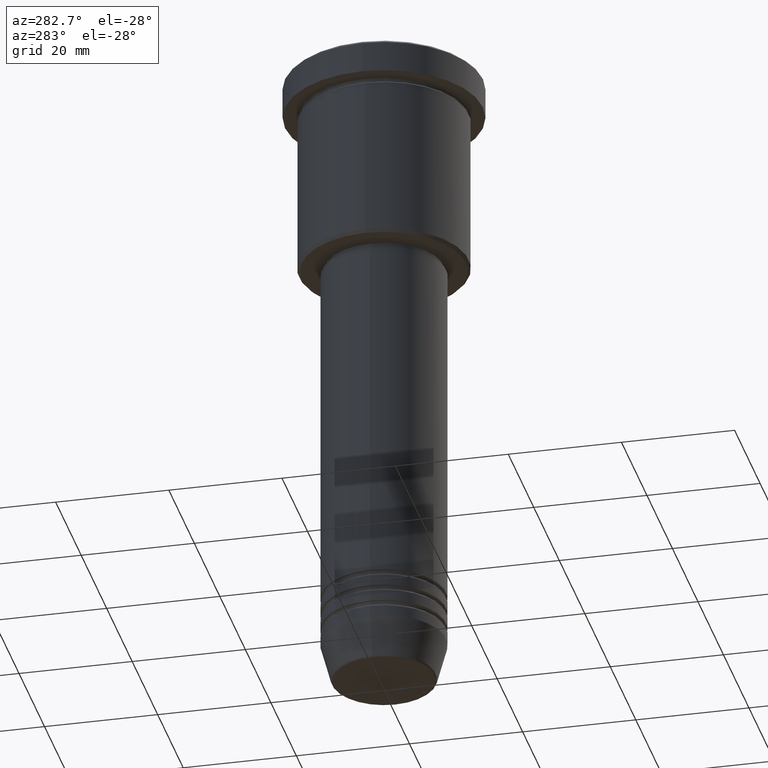
[diagram: clean part render]
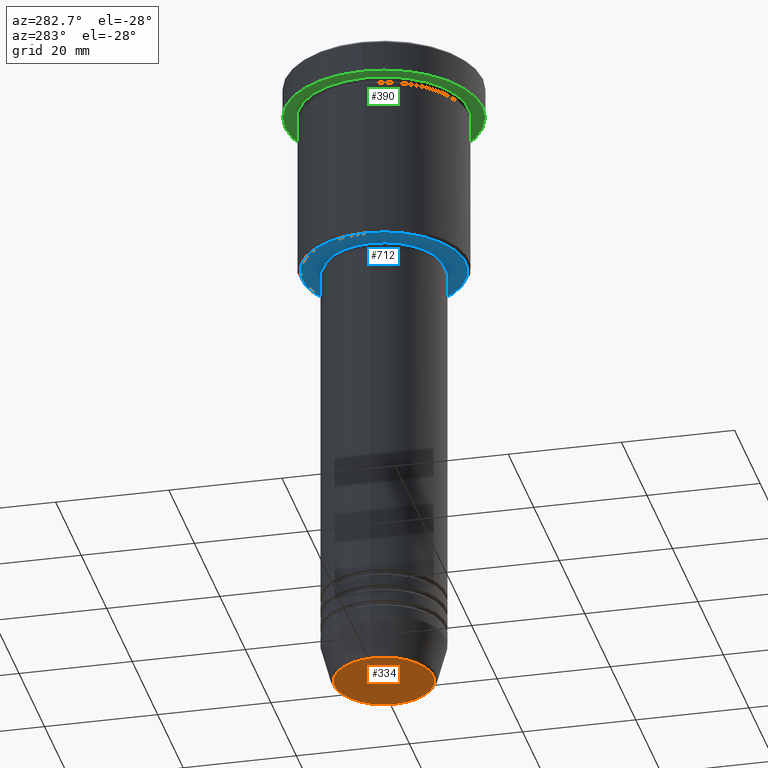
[diagram: same view with three faces highlighted in distinct colors, each labeled with its STEP entity id]
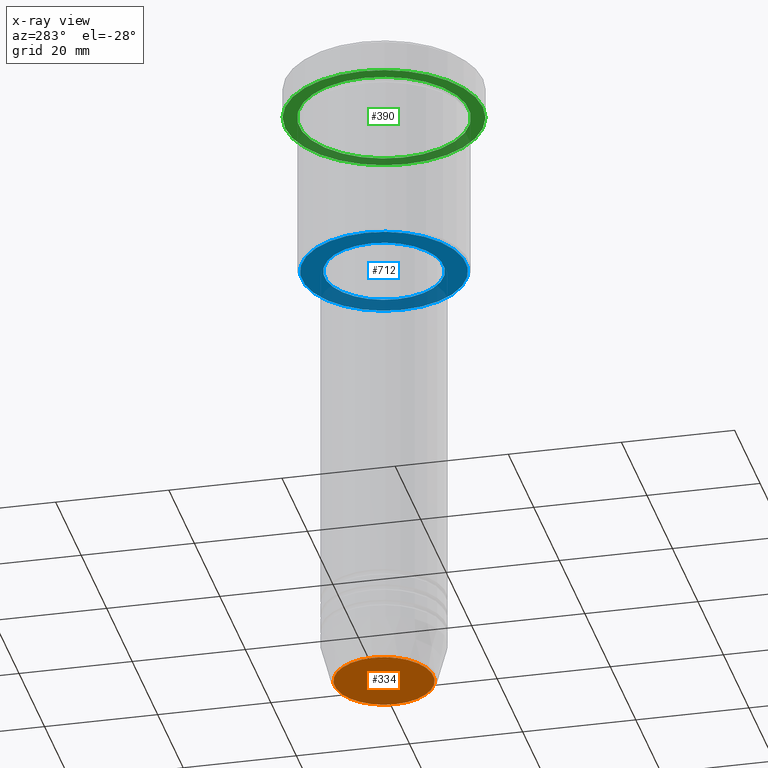
[diagram: x-ray of the same camera — body ghosted, the three highlighted faces saturated]
A machine part, auxiliary view with three faces highlighted in distinct colors.
The next image is the same camera in x-ray (body ghosted, the three faces saturated) — at least one of them is partly hidden behind the body in this view.
Their STEP definitions:

[orange] entity #334 — the highlighted planar face has unit normal (0, -0, 1).
#24 = CIRCLE ( 'NONE', #399, 8.740692158992656502 ) ;
#40 = EDGE_LOOP ( 'NONE', ( #503, #770 ) ) ;
#293 = EDGE_CURVE ( 'NONE', #457, #618, #24, .T. ) ;
#319 = PLANE ( 'NONE',  #1016 ) ;
#322 = CARTESIAN_POINT ( 'NONE',  ( 0.000000000000000000, 0.000000000000000000, -116.0000000000000000 ) ) ;
#331 = CARTESIAN_POINT ( 'NONE',  ( 8.740692158992656502, 0.000000000000000000, -116.0000000000000000 ) ) ;
#334 = ADVANCED_FACE ( 'NONE', ( #678 ), #319, .F. ) ;
#358 = CARTESIAN_POINT ( 'NONE',  ( 0.000000000000000000, 0.000000000000000000, -116.0000000000000000 ) ) ;
#399 = AXIS2_PLACEMENT_3D ( 'NONE', #322, #1046, #852 ) ;
#426 = DIRECTION ( 'NONE',  ( 1.000000000000000000, 0.000000000000000000, 0.000000000000000000 ) ) ;
#457 = VERTEX_POINT ( 'NONE', #843 ) ;
#503 = ORIENTED_EDGE ( 'NONE', *, *, #868, .T. ) ;
#538 = DIRECTION ( 'NONE',  ( 0.000000000000000000, 0.000000000000000000, -1.000000000000000000 ) ) ;
#618 = VERTEX_POINT ( 'NONE', #331 ) ;
#678 = FACE_OUTER_BOUND ( 'NONE', #40, .T. ) ;
#770 = ORIENTED_EDGE ( 'NONE', *, *, #293, .T. ) ;
#787 = AXIS2_PLACEMENT_3D ( 'NONE', #358, #538, #426 ) ;
#843 = CARTESIAN_POINT ( 'NONE',  ( -8.740692158992656502, 1.099999016768739653E-15, -116.0000000000000000 ) ) ;
#852 = DIRECTION ( 'NONE',  ( 1.000000000000000000, 0.000000000000000000, 0.000000000000000000 ) ) ;
#868 = EDGE_CURVE ( 'NONE', #618, #457, #981, .T. ) ;
#896 = CARTESIAN_POINT ( 'NONE',  ( 0.000000000000000000, 0.000000000000000000, -116.0000000000000000 ) ) ;
#912 = DIRECTION ( 'NONE',  ( 1.000000000000000000, 0.000000000000000000, 0.000000000000000000 ) ) ;
#981 = CIRCLE ( 'NONE', #787, 8.740692158992656502 ) ;
#1016 = AXIS2_PLACEMENT_3D ( 'NONE', #896, #1090, #912 ) ;
#1046 = DIRECTION ( 'NONE',  ( 0.000000000000000000, 0.000000000000000000, -1.000000000000000000 ) ) ;
#1090 = DIRECTION ( 'NONE',  ( 0.000000000000000000, -0.000000000000000000, 1.000000000000000000 ) ) ;

[blue] entity #712 — the highlighted planar face has unit normal (0, 0, -1).
#12 = AXIS2_PLACEMENT_3D ( 'NONE', #602, #1050, #134 ) ;
#56 = DIRECTION ( 'NONE',  ( 0.000000000000000000, 0.000000000000000000, -1.000000000000000000 ) ) ;
#58 = FACE_OUTER_BOUND ( 'NONE', #154, .T. ) ;
#69 = AXIS2_PLACEMENT_3D ( 'NONE', #779, #56, #492 ) ;
#94 = CARTESIAN_POINT ( 'NONE',  ( -14.49999999999998401, 1.806354028742345013E-15, -36.00000000000000711 ) ) ;
#102 = EDGE_CURVE ( 'NONE', #350, #603, #383, .T. ) ;
#134 = DIRECTION ( 'NONE',  ( 1.000000000000000000, 0.000000000000000000, 0.000000000000000000 ) ) ;
#141 = CIRCLE ( 'NONE', #12, 10.49999999999999822 ) ;
#151 = EDGE_LOOP ( 'NONE', ( #574, #284 ) ) ;
#154 = EDGE_LOOP ( 'NONE', ( #724, #814 ) ) ;
#228 = CARTESIAN_POINT ( 'NONE',  ( 0.000000000000000000, 0.000000000000000000, -36.00000000000000711 ) ) ;
#230 = CARTESIAN_POINT ( 'NONE',  ( 0.000000000000000000, 15.00000000000000000, -36.00000000000000711 ) ) ;
#284 = ORIENTED_EDGE ( 'NONE', *, *, #287, .T. ) ;
#287 = EDGE_CURVE ( 'NONE', #465, #338, #1049, .T. ) ;
#338 = VERTEX_POINT ( 'NONE', #374 ) ;
#350 = VERTEX_POINT ( 'NONE', #94 ) ;
#374 = CARTESIAN_POINT ( 'NONE',  ( 10.49999999999999822, 0.000000000000000000, -36.00000000000000711 ) ) ;
#383 = CIRCLE ( 'NONE', #1148, 14.49999999999998401 ) ;
#465 = VERTEX_POINT ( 'NONE', #1024 ) ;
#492 = DIRECTION ( 'NONE',  ( -1.000000000000000000, 0.000000000000000000, 0.000000000000000000 ) ) ;
#510 = DIRECTION ( 'NONE',  ( 0.000000000000000000, 0.000000000000000000, -1.000000000000000000 ) ) ;
#574 = ORIENTED_EDGE ( 'NONE', *, *, #719, .T. ) ;
#598 = PLANE ( 'NONE',  #1174 ) ;
#602 = CARTESIAN_POINT ( 'NONE',  ( 0.000000000000000000, 0.000000000000000000, -36.00000000000000711 ) ) ;
#603 = VERTEX_POINT ( 'NONE', #739 ) ;
#688 = FACE_BOUND ( 'NONE', #151, .T. ) ;
#712 = ADVANCED_FACE ( 'NONE', ( #58, #688 ), #598, .T. ) ;
#719 = EDGE_CURVE ( 'NONE', #338, #465, #141, .T. ) ;
#724 = ORIENTED_EDGE ( 'NONE', *, *, #1125, .T. ) ;
#739 = CARTESIAN_POINT ( 'NONE',  ( 14.49999999999998401, 0.000000000000000000, -36.00000000000000711 ) ) ;
#771 = DIRECTION ( 'NONE',  ( -0.000000000000000000, -0.000000000000000000, 1.000000000000000000 ) ) ;
#779 = CARTESIAN_POINT ( 'NONE',  ( 0.000000000000000000, 0.000000000000000000, -36.00000000000000711 ) ) ;
#784 = CARTESIAN_POINT ( 'NONE',  ( 0.000000000000000000, 0.000000000000000000, -36.00000000000000711 ) ) ;
#814 = ORIENTED_EDGE ( 'NONE', *, *, #102, .T. ) ;
#927 = AXIS2_PLACEMENT_3D ( 'NONE', #228, #771, #1140 ) ;
#948 = DIRECTION ( 'NONE',  ( -1.000000000000000000, 0.000000000000000000, -0.000000000000000000 ) ) ;
#952 = DIRECTION ( 'NONE',  ( 0.000000000000000000, 0.000000000000000000, -1.000000000000000000 ) ) ;
#982 = CIRCLE ( 'NONE', #69, 14.49999999999998401 ) ;
#1024 = CARTESIAN_POINT ( 'NONE',  ( -10.49999999999999822, 1.285879139104720633E-15, -36.00000000000000711 ) ) ;
#1049 = CIRCLE ( 'NONE', #927, 10.49999999999999822 ) ;
#1050 = DIRECTION ( 'NONE',  ( -0.000000000000000000, -0.000000000000000000, 1.000000000000000000 ) ) ;
#1058 = DIRECTION ( 'NONE',  ( -1.000000000000000000, 0.000000000000000000, 0.000000000000000000 ) ) ;
#1125 = EDGE_CURVE ( 'NONE', #603, #350, #982, .T. ) ;
#1140 = DIRECTION ( 'NONE',  ( 1.000000000000000000, 0.000000000000000000, 0.000000000000000000 ) ) ;
#1148 = AXIS2_PLACEMENT_3D ( 'NONE', #784, #952, #1058 ) ;
#1174 = AXIS2_PLACEMENT_3D ( 'NONE', #230, #510, #948 ) ;

[green] entity #390 — the highlighted planar face has unit normal (0, 0, -1).
#8 = DIRECTION ( 'NONE',  ( -1.000000000000000000, 0.000000000000000000, -0.000000000000000000 ) ) ;
#91 = CARTESIAN_POINT ( 'NONE',  ( 15.00000000000000000, 1.836970198721029589E-15, -5.999999999999994671 ) ) ;
#93 = CARTESIAN_POINT ( 'NONE',  ( 0.000000000000000000, 0.000000000000000000, -5.999999999999995559 ) ) ;
#111 = DIRECTION ( 'NONE',  ( -1.000000000000000000, 0.000000000000000000, 0.000000000000000000 ) ) ;
#125 = ORIENTED_EDGE ( 'NONE', *, *, #377, .F. ) ;
#144 = AXIS2_PLACEMENT_3D ( 'NONE', #697, #590, #687 ) ;
#166 = DIRECTION ( 'NONE',  ( -0.000000000000000000, -0.000000000000000000, 1.000000000000000000 ) ) ;
#177 = DIRECTION ( 'NONE',  ( 1.000000000000000000, 0.000000000000000000, 0.000000000000000000 ) ) ;
#195 = VERTEX_POINT ( 'NONE', #489 ) ;
#204 = AXIS2_PLACEMENT_3D ( 'NONE', #220, #1019, #111 ) ;
#220 = CARTESIAN_POINT ( 'NONE',  ( 0.000000000000000000, 0.000000000000000000, -5.999999999999995559 ) ) ;
#240 = CIRCLE ( 'NONE', #144, 17.50000000000000000 ) ;
#265 = VERTEX_POINT ( 'NONE', #593 ) ;
#285 = PLANE ( 'NONE',  #501 ) ;
#289 = ORIENTED_EDGE ( 'NONE', *, *, #1113, .F. ) ;
#318 = CARTESIAN_POINT ( 'NONE',  ( -17.50000000000000000, 2.143131898507868248E-15, -5.999999999999995559 ) ) ;
#343 = CIRCLE ( 'NONE', #595, 17.50000000000000000 ) ;
#377 = EDGE_CURVE ( 'NONE', #195, #642, #343, .T. ) ;
#390 = ADVANCED_FACE ( 'NONE', ( #901, #466 ), #285, .T. ) ;
#406 = VERTEX_POINT ( 'NONE', #91 ) ;
#466 = FACE_OUTER_BOUND ( 'NONE', #903, .T. ) ;
#489 = CARTESIAN_POINT ( 'NONE',  ( 17.50000000000000000, 0.000000000000000000, -5.999999999999995559 ) ) ;
#501 = AXIS2_PLACEMENT_3D ( 'NONE', #828, #648, #8 ) ;
#506 = CIRCLE ( 'NONE', #204, 15.00000000000000000 ) ;
#590 = DIRECTION ( 'NONE',  ( -0.000000000000000000, -0.000000000000000000, 1.000000000000000000 ) ) ;
#593 = CARTESIAN_POINT ( 'NONE',  ( -15.00000000000000000, 0.000000000000000000, -5.999999999999994671 ) ) ;
#595 = AXIS2_PLACEMENT_3D ( 'NONE', #725, #919, #177 ) ;
#600 = ORIENTED_EDGE ( 'NONE', *, *, #1006, .T. ) ;
#642 = VERTEX_POINT ( 'NONE', #318 ) ;
#648 = DIRECTION ( 'NONE',  ( 0.000000000000000000, 0.000000000000000000, -1.000000000000000000 ) ) ;
#687 = DIRECTION ( 'NONE',  ( 1.000000000000000000, 0.000000000000000000, 0.000000000000000000 ) ) ;
#697 = CARTESIAN_POINT ( 'NONE',  ( 0.000000000000000000, 0.000000000000000000, -5.999999999999995559 ) ) ;
#725 = CARTESIAN_POINT ( 'NONE',  ( 0.000000000000000000, 0.000000000000000000, -5.999999999999995559 ) ) ;
#730 = CIRCLE ( 'NONE', #929, 15.00000000000000000 ) ;
#775 = EDGE_LOOP ( 'NONE', ( #1081, #600 ) ) ;
#828 = CARTESIAN_POINT ( 'NONE',  ( 0.000000000000000000, 17.50000000000000000, -5.999999999999995559 ) ) ;
#892 = DIRECTION ( 'NONE',  ( -1.000000000000000000, 0.000000000000000000, 0.000000000000000000 ) ) ;
#901 = FACE_BOUND ( 'NONE', #775, .T. ) ;
#903 = EDGE_LOOP ( 'NONE', ( #125, #289 ) ) ;
#919 = DIRECTION ( 'NONE',  ( -0.000000000000000000, -0.000000000000000000, 1.000000000000000000 ) ) ;
#924 = EDGE_CURVE ( 'NONE', #265, #406, #730, .T. ) ;
#929 = AXIS2_PLACEMENT_3D ( 'NONE', #93, #166, #892 ) ;
#1006 = EDGE_CURVE ( 'NONE', #406, #265, #506, .T. ) ;
#1019 = DIRECTION ( 'NONE',  ( -0.000000000000000000, -0.000000000000000000, 1.000000000000000000 ) ) ;
#1081 = ORIENTED_EDGE ( 'NONE', *, *, #924, .T. ) ;
#1113 = EDGE_CURVE ( 'NONE', #642, #195, #240, .T. ) ;